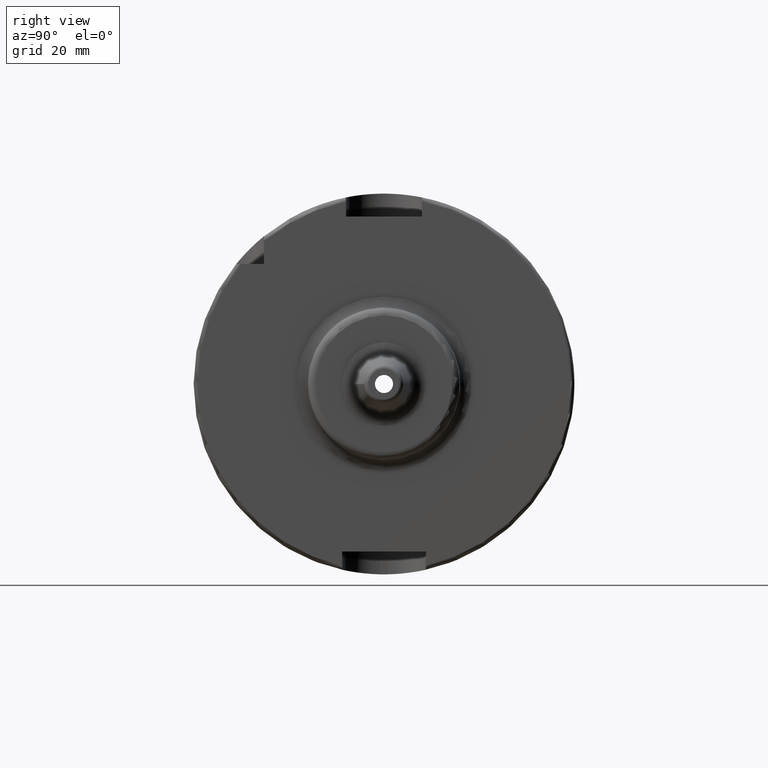
[diagram: clean part render]
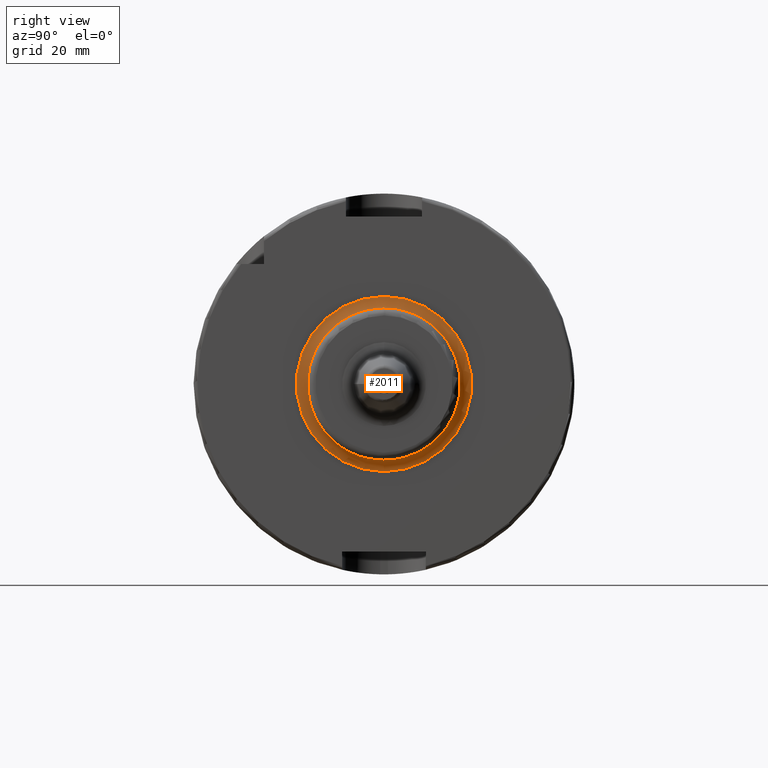
[diagram: same view with one face highlighted and labeled with its STEP entity id]
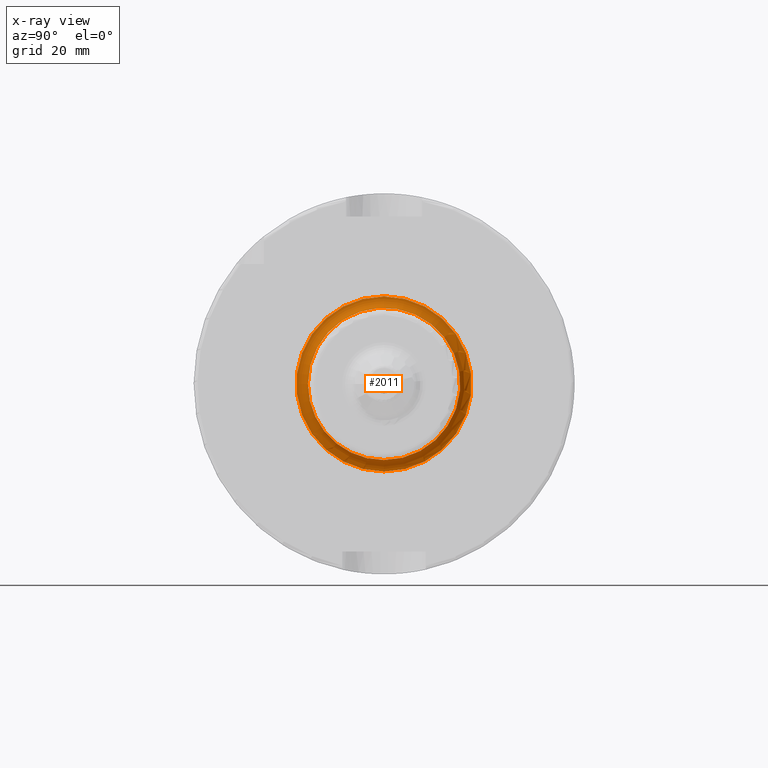
[diagram: x-ray of the same camera — body ghosted, the highlighted face saturated]
A machine part, right view. The second image highlights one B-rep face of the part: STEP entity #2011.
The next image is the same camera in x-ray: the body ghosted, the highlighted face saturated — about 0% of this face is hidden behind the body in this view.
In plain terms, the highlighted toroidal blend (fillet) surface has major radius 23 mm and minor (blend) radius 3 mm.
Its self-contained STEP definition (entity closure, byte-faithful):
#421=FACE_OUTER_BOUND('',#543,.T.);
#543=EDGE_LOOP('',(#1364,#1365,#1366,#1367,#1368));
#678=CIRCLE('',#2165,20.);
#679=CIRCLE('',#2166,20.);
#681=CIRCLE('',#2170,3.);
#682=CIRCLE('',#2171,23.);
#811=VERTEX_POINT('',#3069);
#812=VERTEX_POINT('',#3071);
#813=VERTEX_POINT('',#3077);
#1025=EDGE_CURVE('',#812,#811,#678,.T.);
#1026=EDGE_CURVE('',#811,#812,#679,.T.);
#1028=EDGE_CURVE('',#812,#813,#681,.T.);
#1029=EDGE_CURVE('',#813,#813,#682,.T.);
#1364=ORIENTED_EDGE('',*,*,#1026,.T.);
#1365=ORIENTED_EDGE('',*,*,#1028,.T.);
#1366=ORIENTED_EDGE('',*,*,#1029,.T.);
#1367=ORIENTED_EDGE('',*,*,#1028,.F.);
#1368=ORIENTED_EDGE('',*,*,#1025,.T.);
#1980=TOROIDAL_SURFACE('',#2169,23.,3.);
#2011=ADVANCED_FACE('',(#421),#1980,.F.);
#2165=AXIS2_PLACEMENT_3D('',#3072,#2448,#2449);
#2166=AXIS2_PLACEMENT_3D('',#3073,#2450,#2451);
#2169=AXIS2_PLACEMENT_3D('',#3076,#2456,#2457);
#2170=AXIS2_PLACEMENT_3D('',#3078,#2458,#2459);
#2171=AXIS2_PLACEMENT_3D('',#3079,#2460,#2461);
#2448=DIRECTION('center_axis',(-1.,0.,0.));
#2449=DIRECTION('ref_axis',(0.,-1.,-1.22464679914735E-16));
#2450=DIRECTION('center_axis',(-1.,0.,0.));
#2451=DIRECTION('ref_axis',(0.,-1.,-1.22464679914735E-16));
#2456=DIRECTION('center_axis',(-1.,0.,0.));
#2457=DIRECTION('ref_axis',(0.,0.,1.));
#2458=DIRECTION('center_axis',(0.,-1.,1.22464679914735E-16));
#2459=DIRECTION('ref_axis',(0.,-1.22464679914735E-16,-1.));
#2460=DIRECTION('center_axis',(1.,0.,0.));
#2461=DIRECTION('ref_axis',(0.,-1.,-1.22464679914735E-16));
#3069=CARTESIAN_POINT('',(32.,-20.,-2.44929359829471E-15));
#3071=CARTESIAN_POINT('',(32.,-2.44929359829471E-15,-20.));
#3072=CARTESIAN_POINT('Origin',(32.,0.,0.));
#3073=CARTESIAN_POINT('Origin',(32.,0.,0.));
#3076=CARTESIAN_POINT('Origin',(32.,0.,0.));
#3077=CARTESIAN_POINT('',(29.,-2.81668763803891E-15,-23.));
#3078=CARTESIAN_POINT('Origin',(32.,-2.81668763803891E-15,-23.));
#3079=CARTESIAN_POINT('Origin',(29.,0.,0.));